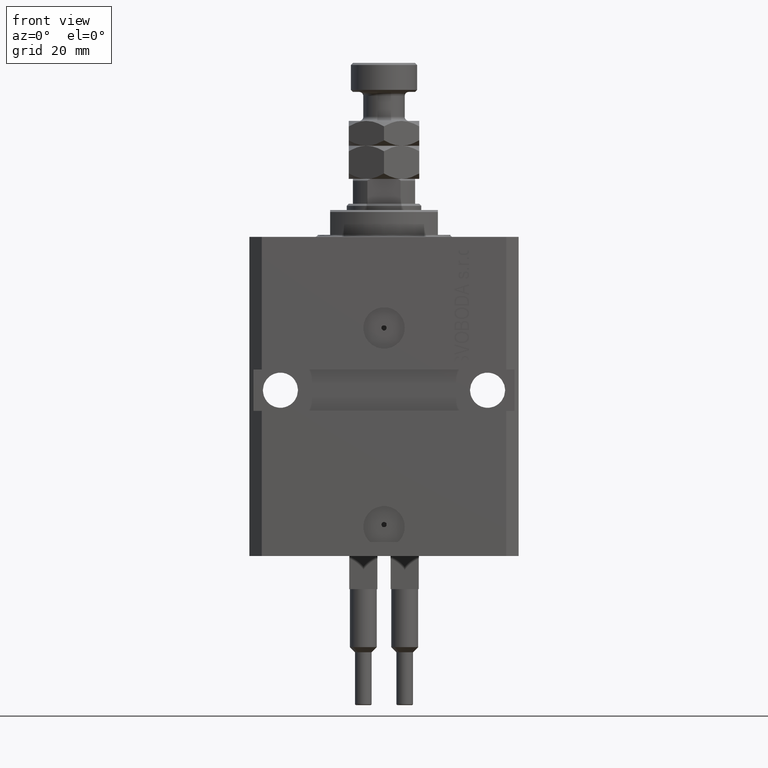
[diagram: clean part render]
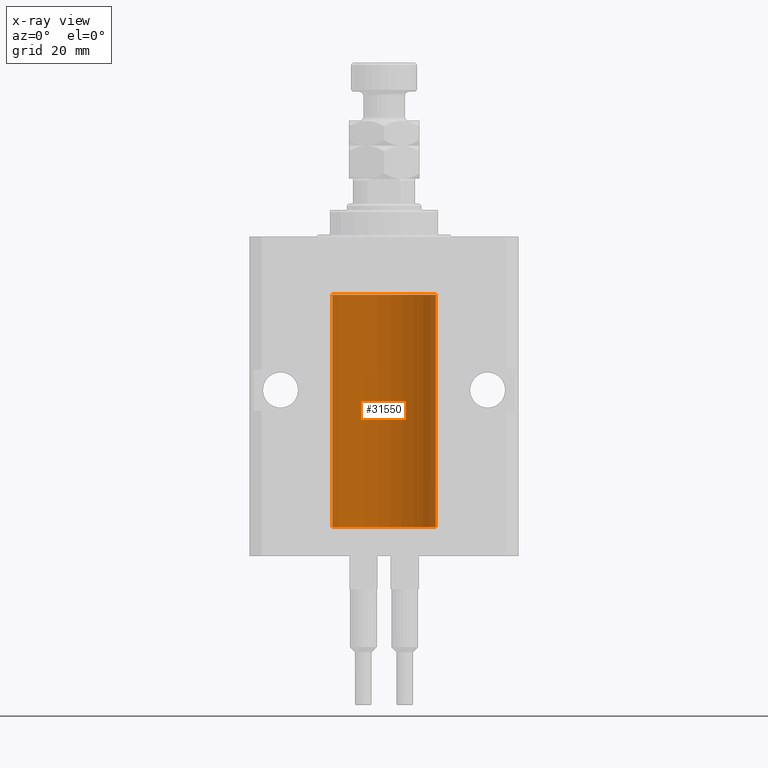
[diagram: x-ray — body ghosted, one internal face saturated and labeled with its STEP entity id]
A machine part, front view, then the same camera in x-ray: the body is ghosted and one INTERNAL B-rep face — a face not visible from any outside direction — is saturated and labeled: STEP entity #31550.
In plain terms, the highlighted cylindrical surface (partial cylindrical patch) has radius 12.5 mm, axis along (0, 0, 1).
Its self-contained STEP definition (entity closure, byte-faithful):
#110 = CARTESIAN_POINT ( 'NONE',  ( 0.000000000000000000, 0.000000000000000000, -13.99999999999999822 ) ) ;
#116 = EDGE_CURVE ( 'NONE', #43710, #31963, #1089, .T. ) ;
#315 = CARTESIAN_POINT ( 'NONE',  ( -12.49625855304193500, 0.3150454781038046770, -64.45402800297485157 ) ) ;
#351 = DIRECTION ( 'NONE',  ( 0.000000000000000000, 0.000000000000000000, 1.000000000000000000 ) ) ;
#488 = CARTESIAN_POINT ( 'NONE',  ( 12.50000000000000000, 0.000000000000000000, -70.09999999999999432 ) ) ;
#519 = CARTESIAN_POINT ( 'NONE',  ( -12.50000000000000000, -2.089494013101375120E-17, -21.37499999999999645 ) ) ;
#608 = DIRECTION ( 'NONE',  ( 1.000000000000000000, 0.000000000000000000, 0.000000000000000000 ) ) ;
#780 = CARTESIAN_POINT ( 'NONE',  ( 12.49012055744648997, 0.5002956126656082914, -64.61641710202404454 ) ) ;
#841 = DIRECTION ( 'NONE',  ( -0.000000000000000000, -0.000000000000000000, 1.000000000000000000 ) ) ;
#1089 = LINE ( 'NONE', #8701, #26406 ) ;
#1692 = EDGE_CURVE ( 'NONE', #29620, #37206, #7689, .T. ) ;
#1758 = CARTESIAN_POINT ( 'NONE',  ( -12.50000000000000000, 1.530808498934191521E-15, -70.09999999999999432 ) ) ;
#2311 = ORIENTED_EDGE ( 'NONE', *, *, #16055, .T. ) ;
#3070 = VERTEX_POINT ( 'NONE', #20712 ) ;
#4090 = CARTESIAN_POINT ( 'NONE',  ( -12.48520330846397819, 0.6088355886774127201, -22.16325431852561323 ) ) ;
#4254 = EDGE_CURVE ( 'NONE', #3070, #14392, #20948, .T. ) ;
#4430 = ORIENTED_EDGE ( 'NONE', *, *, #5983, .F. ) ;
#4573 = CARTESIAN_POINT ( 'NONE',  ( 12.48436522214846889, 0.6250000000078781426, -21.99999999999923261 ) ) ;
#5080 = CARTESIAN_POINT ( 'NONE',  ( 12.49625698805481022, 0.3151108292486944906, -65.54593695688173227 ) ) ;
#5106 = CARTESIAN_POINT ( 'NONE',  ( -12.50000000000000000, 1.530808498934191521E-15, -13.99999999999999822 ) ) ;
#5288 = VERTEX_POINT ( 'NONE', #39409 ) ;
#5983 = EDGE_CURVE ( 'NONE', #19927, #30348, #40825, .T. ) ;
#6635 = VECTOR ( 'NONE', #6652, 1000.000000000000000 ) ;
#6652 = DIRECTION ( 'NONE',  ( -0.000000000000000000, -0.000000000000000000, 1.000000000000000000 ) ) ;
#7146 = CARTESIAN_POINT ( 'NONE',  ( -12.48809959379011403, 0.5462151254764975317, -22.31461370481611795 ) ) ;
#7404 = CARTESIAN_POINT ( 'NONE',  ( -12.48436376893640443, 0.6250290278979917513, -22.08132082824473486 ) ) ;
#7676 = CARTESIAN_POINT ( 'NONE',  ( -12.48809959379011580, 0.5462151254764966435, -65.31461370481613926 ) ) ;
#7689 = LINE ( 'NONE', #8447, #41874 ) ;
#7936 = CARTESIAN_POINT ( 'NONE',  ( -12.48436376893640265, 0.6250290278979918623, -65.08132082824472775 ) ) ;
#8447 = CARTESIAN_POINT ( 'NONE',  ( -12.50000000000000000, 1.530808498934191521E-15, -70.09999999999999432 ) ) ;
#8701 = CARTESIAN_POINT ( 'NONE',  ( 12.50000000000000000, 0.000000000000000000, -70.09999999999999432 ) ) ;
#8733 = CYLINDRICAL_SURFACE ( 'NONE', #11374, 12.50000000000000000 ) ;
#9634 = CARTESIAN_POINT ( 'NONE',  ( 12.48436522214885969, 0.6250000000001505462, -65.16312747540307271 ) ) ;
#10952 = CARTESIAN_POINT ( 'NONE',  ( -12.50000000000000000, 0.08260426088729219685, -21.37500000000000000 ) ) ;
#10993 = CARTESIAN_POINT ( 'NONE',  ( -12.49999999999999645, 0.08260426088728485550, -64.37499999999998579 ) ) ;
#11374 = AXIS2_PLACEMENT_3D ( 'NONE', #48043, #29030, #16848 ) ;
#11463 = CARTESIAN_POINT ( 'NONE',  ( -12.48810268015257563, 0.5573155909661349217, -21.67347410093867666 ) ) ;
#11748 = CARTESIAN_POINT ( 'NONE',  ( -12.48810268015257741, 0.5573155909661293705, -64.67347410093867666 ) ) ;
#11772 = AXIS2_PLACEMENT_3D ( 'NONE', #32771, #42980, #12311 ) ;
#12311 = DIRECTION ( 'NONE',  ( 1.000000000000000000, 0.000000000000000000, 0.000000000000000000 ) ) ;
#12335 = ORIENTED_EDGE ( 'NONE', *, *, #28142, .T. ) ;
#13212 = CARTESIAN_POINT ( 'NONE',  ( 12.49915742890631876, 0.1636982395582408101, -22.60872397847025894 ) ) ;
#13441 = CARTESIAN_POINT ( 'NONE',  ( 12.50000000000000000, -1.836039810331332019E-15, -65.62500000000000000 ) ) ;
#13670 = EDGE_CURVE ( 'NONE', #3070, #29620, #35271, .T. ) ;
#14259 = LINE ( 'NONE', #37837, #6635 ) ;
#14368 = CARTESIAN_POINT ( 'NONE',  ( 12.50000000000000000, -1.836039810331332019E-15, -65.62500000000000000 ) ) ;
#14392 = VERTEX_POINT ( 'NONE', #14368 ) ;
#14450 = ORIENTED_EDGE ( 'NONE', *, *, #34205, .F. ) ;
#15256 = CARTESIAN_POINT ( 'NONE',  ( -12.49631005746706336, 0.3253680783018528255, -22.55856740465392463 ) ) ;
#16055 = EDGE_CURVE ( 'NONE', #14392, #5288, #39634, .T. ) ;
#16513 = CARTESIAN_POINT ( 'NONE',  ( 12.50000000000017941, 3.868073689162038701E-13, -64.37499999999640465 ) ) ;
#16673 = CARTESIAN_POINT ( 'NONE',  ( 12.50000000000017941, 3.868073565084946818E-13, -21.37499999999641176 ) ) ;
#16758 = CARTESIAN_POINT ( 'NONE',  ( 12.49999999999999822, 0.1631389616600901760, -64.37500000000022737 ) ) ;
#16848 = DIRECTION ( 'NONE',  ( 1.000000000000000000, 0.000000000000000000, 0.000000000000000000 ) ) ;
#16938 = EDGE_LOOP ( 'NONE', ( #28950, #26225, #38978, #2311, #37263, #29875, #27075, #22040, #33425, #12335, #4430, #34277, #14450, #22898 ) ) ;
#16949 = VECTOR ( 'NONE', #47928, 1000.000000000000000 ) ;
#17254 = CARTESIAN_POINT ( 'NONE',  ( 12.49999999999999822, 0.08262306818362624705, -65.62500000000000000 ) ) ;
#19107 = CARTESIAN_POINT ( 'NONE',  ( -12.48436813453758809, 0.6249418250771181516, -64.83668996798922990 ) ) ;
#19361 = CARTESIAN_POINT ( 'NONE',  ( -12.49915784441386890, 0.1636601911727943726, -64.39126818989430490 ) ) ;
#19573 = CARTESIAN_POINT ( 'NONE',  ( -12.49999999999999289, 0.1631761135151241215, -22.62499999999984013 ) ) ;
#19927 = VERTEX_POINT ( 'NONE', #25377 ) ;
#20712 = CARTESIAN_POINT ( 'NONE',  ( 12.50000000000000000, 0.000000000000000000, -70.09999999999999432 ) ) ;
#20948 = LINE ( 'NONE', #32862, #41826 ) ;
#21254 = CARTESIAN_POINT ( 'NONE',  ( 12.50000000000000000, 0.000000000000000000, -13.99999999999999822 ) ) ;
#21567 = CARTESIAN_POINT ( 'NONE',  ( 12.48809900631782099, 0.5573988467445673001, -65.32640147935475738 ) ) ;
#22040 = ORIENTED_EDGE ( 'NONE', *, *, #32724, .T. ) ;
#22898 = ORIENTED_EDGE ( 'NONE', *, *, #34950, .T. ) ;
#23169 = CARTESIAN_POINT ( 'NONE',  ( -12.49422197749724361, 0.3843754434364307082, -64.50047099568097053 ) ) ;
#23687 = CARTESIAN_POINT ( 'NONE',  ( -12.50000000000000000, -1.053276923642966949E-14, -64.37500000000000000 ) ) ;
#24141 = CARTESIAN_POINT ( 'NONE',  ( 12.48810305280568222, 0.5461368461738485003, -64.68525466142676805 ) ) ;
#24307 = CARTESIAN_POINT ( 'NONE',  ( 12.49999999999999112, 0.1631389616600886772, -21.37500000000019185 ) ) ;
#24559 = CARTESIAN_POINT ( 'NONE',  ( 12.49012055744648997, 0.5002956126655978553, -21.61641710202404454 ) ) ;
#24876 = CARTESIAN_POINT ( 'NONE',  ( 12.49421963472024721, 0.3844519291903548686, -22.49947303647045871 ) ) ;
#25124 = CARTESIAN_POINT ( 'NONE',  ( 12.48436522214846711, 0.6250000000078848039, -64.99999999999923261 ) ) ;
#25320 = CARTESIAN_POINT ( 'NONE',  ( 12.48436522214888100, 0.6249999999996767031, -21.91847339462351130 ) ) ;
#25377 = CARTESIAN_POINT ( 'NONE',  ( -12.50000000000000000, -2.089494013101375120E-17, -21.37499999999999645 ) ) ;
#25442 = EDGE_CURVE ( 'NONE', #31220, #26501, #43869, .T. ) ;
#26225 = ORIENTED_EDGE ( 'NONE', *, *, #13670, .F. ) ;
#26406 = VECTOR ( 'NONE', #27743, 1000.000000000000000 ) ;
#26425 = CARTESIAN_POINT ( 'NONE',  ( -12.49915784441386890, 0.1636601911727947889, -21.39126818989430490 ) ) ;
#26501 = VERTEX_POINT ( 'NONE', #21254 ) ;
#27075 = ORIENTED_EDGE ( 'NONE', *, *, #49376, .T. ) ;
#27169 = CARTESIAN_POINT ( 'NONE',  ( -12.48436813453758454, 0.6249418250771192618, -21.83668996798922635 ) ) ;
#27214 = CARTESIAN_POINT ( 'NONE',  ( -12.49011732893843885, 0.5003763274120245352, -65.38348111289289477 ) ) ;
#27743 = DIRECTION ( 'NONE',  ( -0.000000000000000000, -0.000000000000000000, 1.000000000000000000 ) ) ;
#28142 = EDGE_CURVE ( 'NONE', #26501, #30348, #29205, .T. ) ;
#28444 = CARTESIAN_POINT ( 'NONE',  ( 12.48436522214846711, 0.6250000000078848039, -64.99999999999923261 ) ) ;
#28950 = ORIENTED_EDGE ( 'NONE', *, *, #1692, .F. ) ;
#29030 = DIRECTION ( 'NONE',  ( -0.000000000000000000, -0.000000000000000000, 1.000000000000000000 ) ) ;
#29179 = CARTESIAN_POINT ( 'NONE',  ( 12.49915742890631876, 0.1636982395582385896, -65.60872397847025184 ) ) ;
#29205 = CIRCLE ( 'NONE', #42934, 12.50000000000000000 ) ;
#29620 = VERTEX_POINT ( 'NONE', #39044 ) ;
#29682 = CARTESIAN_POINT ( 'NONE',  ( 12.49625698805481200, 0.3151108292486943241, -22.54593695688172161 ) ) ;
#29875 = ORIENTED_EDGE ( 'NONE', *, *, #116, .T. ) ;
#30002 = CARTESIAN_POINT ( 'NONE',  ( 12.50000000000017941, 3.868073689162038701E-13, -64.37499999999640465 ) ) ;
#30348 = VERTEX_POINT ( 'NONE', #5106 ) ;
#30628 = VERTEX_POINT ( 'NONE', #33738 ) ;
#31029 = CARTESIAN_POINT ( 'NONE',  ( -12.49631005746706514, 0.3253680783018499389, -65.55856740465391397 ) ) ;
#31220 = VERTEX_POINT ( 'NONE', #45036 ) ;
#31231 = CARTESIAN_POINT ( 'NONE',  ( -12.50000000000017941, 3.883381646606358354E-13, -22.62500000000358824 ) ) ;
#31273 = CARTESIAN_POINT ( 'NONE',  ( -12.50000000000017941, 3.883381774819353300E-13, -65.62500000000359535 ) ) ;
#31550 = ADVANCED_FACE ( 'NONE', ( #43981 ), #8733, .F. ) ;
#31963 = VERTEX_POINT ( 'NONE', #32261 ) ;
#32261 = CARTESIAN_POINT ( 'NONE',  ( 12.50000000000000000, -6.043189914290669986E-17, -22.62500000000000000 ) ) ;
#32724 = EDGE_CURVE ( 'NONE', #36186, #31220, #36575, .T. ) ;
#32771 = CARTESIAN_POINT ( 'NONE',  ( 0.000000000000000000, 0.000000000000000000, -70.09999999999999432 ) ) ;
#32862 = CARTESIAN_POINT ( 'NONE',  ( 12.50000000000000000, 0.000000000000000000, -70.09999999999999432 ) ) ;
#32901 = B_SPLINE_CURVE_WITH_KNOTS ( 'NONE', 3,
 ( #28444, #39849, #36295, #24141, #780, #43898, #16758, #16513 ),
 .UNSPECIFIED., .F., .F.,
 ( 4, 2, 2, 4 ),
 ( 0.0009773924225142606621, 0.001221629287363811033, 0.001465866152213361404, 0.001954339881912461711 ),
 .UNSPECIFIED. ) ;
#33425 = ORIENTED_EDGE ( 'NONE', *, *, #25442, .T. ) ;
#33491 = CARTESIAN_POINT ( 'NONE',  ( 12.48436522214885080, 0.6250000000001435518, -22.16312747540306560 ) ) ;
#33738 = CARTESIAN_POINT ( 'NONE',  ( -12.50000000000017941, 3.883381646606358354E-13, -22.62500000000358824 ) ) ;
#34205 = EDGE_CURVE ( 'NONE', #46094, #30628, #14259, .T. ) ;
#34277 = ORIENTED_EDGE ( 'NONE', *, *, #41920, .T. ) ;
#34950 = EDGE_CURVE ( 'NONE', #46094, #37206, #38878, .T. ) ;
#35082 = CARTESIAN_POINT ( 'NONE',  ( -12.48520330846398174, 0.6088355886774118320, -65.16325431852561678 ) ) ;
#35271 = CIRCLE ( 'NONE', #11772, 12.50000000000000000 ) ;
#36031 = CARTESIAN_POINT ( 'NONE',  ( 12.50000000000000000, -6.043189914290669986E-17, -22.62500000000000000 ) ) ;
#36186 = VERTEX_POINT ( 'NONE', #4573 ) ;
#36295 = CARTESIAN_POINT ( 'NONE',  ( 12.48520578595314845, 0.6087855079133740466, -64.83656717509344958 ) ) ;
#36575 = B_SPLINE_CURVE_WITH_KNOTS ( 'NONE', 3,
 ( #44578, #25320, #40783, #48123, #24559, #44062, #24307, #16673 ),
 .UNSPECIFIED., .F., .F.,
 ( 4, 2, 2, 4 ),
 ( 0.0009773924225142526390, 0.001221629287363798890, 0.001465866152213344924, 0.001954339881912444798 ),
 .UNSPECIFIED. ) ;
#37206 = VERTEX_POINT ( 'NONE', #43845 ) ;
#37263 = ORIENTED_EDGE ( 'NONE', *, *, #41987, .T. ) ;
#37301 = CARTESIAN_POINT ( 'NONE',  ( 12.48809900631782099, 0.5573988467445616379, -22.32640147935473962 ) ) ;
#37830 = B_SPLINE_CURVE_WITH_KNOTS ( 'NONE', 3,
 ( #519, #10952, #26425, #42393, #41904, #11463, #27169, #7404, #4090, #7146, #45945, #15256, #19573, #31231 ),
 .UNSPECIFIED., .F., .F.,
 ( 4, 2, 2, 2, 2, 2, 4 ),
 ( 2.030551168097110502E-20, 0.0002442924852390969078, 0.0004885849704781938157, 0.0009771699409563880650, 0.001221462426195485135, 0.001465754911434582423, 0.001954339881912776130 ),
 .UNSPECIFIED. ) ;
#37837 = CARTESIAN_POINT ( 'NONE',  ( -12.50000000000000000, 1.530808498934191521E-15, -70.09999999999999432 ) ) ;
#37843 = VECTOR ( 'NONE', #40310, 1000.000000000000000 ) ;
#38626 = CARTESIAN_POINT ( 'NONE',  ( -12.49999999999999822, 0.1631761135151225950, -65.62499999999985789 ) ) ;
#38878 = B_SPLINE_CURVE_WITH_KNOTS ( 'NONE', 3,
 ( #23687, #10993, #19361, #315, #23169, #11748, #19107, #7936, #35082, #7676, #27214, #31029, #38626, #31273 ),
 .UNSPECIFIED., .F., .F.,
 ( 4, 2, 2, 2, 2, 2, 4 ),
 ( 3.492495172846855184E-18, 0.0002442924852390798859, 0.0004885849704781563023, 0.0009771699409563386254, 0.001221462426195450658, 0.001465754911434562473, 0.001954339881912786538 ),
 .UNSPECIFIED. ) ;
#38978 = ORIENTED_EDGE ( 'NONE', *, *, #4254, .T. ) ;
#39044 = CARTESIAN_POINT ( 'NONE',  ( -12.50000000000000000, 1.530808498934191521E-15, -70.09999999999999432 ) ) ;
#39409 = CARTESIAN_POINT ( 'NONE',  ( 12.48436522214846711, 0.6250000000078848039, -64.99999999999923261 ) ) ;
#39634 = B_SPLINE_CURVE_WITH_KNOTS ( 'NONE', 3,
 ( #13441, #17254, #29179, #5080, #40844, #21567, #9634, #25124 ),
 .UNSPECIFIED., .F., .F.,
 ( 4, 2, 2, 4 ),
 ( 1.784246692340212412E-18, 0.0002443481056285665750, 0.0004886962112571313068, 0.0009773924225142606621 ),
 .UNSPECIFIED. ) ;
#39849 = CARTESIAN_POINT ( 'NONE',  ( 12.48436522214888100, 0.6249999999996834754, -64.91847339462351840 ) ) ;
#40310 = DIRECTION ( 'NONE',  ( -0.000000000000000000, -0.000000000000000000, 1.000000000000000000 ) ) ;
#40783 = CARTESIAN_POINT ( 'NONE',  ( 12.48520578595314845, 0.6087855079133686065, -21.83656717509346024 ) ) ;
#40825 = LINE ( 'NONE', #1758, #37843 ) ;
#40844 = CARTESIAN_POINT ( 'NONE',  ( 12.49421963472024721, 0.3844519291903572555, -65.49947303647046226 ) ) ;
#40978 = DIRECTION ( 'NONE',  ( -0.000000000000000000, -0.000000000000000000, 1.000000000000000000 ) ) ;
#41826 = VECTOR ( 'NONE', #40978, 1000.000000000000000 ) ;
#41874 = VECTOR ( 'NONE', #841, 1000.000000000000000 ) ;
#41904 = CARTESIAN_POINT ( 'NONE',  ( -12.49422197749724006, 0.3843754434364375916, -21.50047099568095277 ) ) ;
#41920 = EDGE_CURVE ( 'NONE', #19927, #30628, #37830, .T. ) ;
#41987 = EDGE_CURVE ( 'NONE', #5288, #43710, #32901, .T. ) ;
#42393 = CARTESIAN_POINT ( 'NONE',  ( -12.49625855304193678, 0.3150454781038042329, -21.45402800297484802 ) ) ;
#42934 = AXIS2_PLACEMENT_3D ( 'NONE', #110, #351, #608 ) ;
#42980 = DIRECTION ( 'NONE',  ( 0.000000000000000000, 0.000000000000000000, 1.000000000000000000 ) ) ;
#43710 = VERTEX_POINT ( 'NONE', #30002 ) ;
#43845 = CARTESIAN_POINT ( 'NONE',  ( -12.50000000000017941, 3.883381774819353300E-13, -65.62500000000359535 ) ) ;
#43869 = LINE ( 'NONE', #488, #16949 ) ;
#43898 = CARTESIAN_POINT ( 'NONE',  ( 12.49631206032076136, 0.3252904079142934779, -64.44139700214927302 ) ) ;
#43981 = FACE_OUTER_BOUND ( 'NONE', #16938, .T. ) ;
#44062 = CARTESIAN_POINT ( 'NONE',  ( 12.49631206032075958, 0.3252904079142805438, -21.44139700214925526 ) ) ;
#44578 = CARTESIAN_POINT ( 'NONE',  ( 12.48436522214846889, 0.6250000000078781426, -21.99999999999923261 ) ) ;
#45036 = CARTESIAN_POINT ( 'NONE',  ( 12.50000000000017941, 3.868073565084946818E-13, -21.37499999999641176 ) ) ;
#45178 = B_SPLINE_CURVE_WITH_KNOTS ( 'NONE', 3,
 ( #36031, #46942, #13212, #29682, #24876, #37301, #33491, #48958 ),
 .UNSPECIFIED., .F., .F.,
 ( 4, 2, 2, 4 ),
 ( 5.872716678082737689E-20, 0.0002443481056285632140, 0.0004886962112571263195, 0.0009773924225142526390 ),
 .UNSPECIFIED. ) ;
#45818 = CARTESIAN_POINT ( 'NONE',  ( -12.50000000000000000, -1.053276923642966949E-14, -64.37500000000000000 ) ) ;
#45945 = CARTESIAN_POINT ( 'NONE',  ( -12.49011732893843529, 0.5003763274120274218, -22.38348111289287701 ) ) ;
#46094 = VERTEX_POINT ( 'NONE', #45818 ) ;
#46942 = CARTESIAN_POINT ( 'NONE',  ( 12.50000000000000178, 0.08262306818362646910, -22.62499999999997158 ) ) ;
#47928 = DIRECTION ( 'NONE',  ( -0.000000000000000000, -0.000000000000000000, 1.000000000000000000 ) ) ;
#48043 = CARTESIAN_POINT ( 'NONE',  ( 0.000000000000000000, 0.000000000000000000, -70.09999999999999432 ) ) ;
#48123 = CARTESIAN_POINT ( 'NONE',  ( 12.48810305280568222, 0.5461368461738450586, -21.68525466142676805 ) ) ;
#48958 = CARTESIAN_POINT ( 'NONE',  ( 12.48436522214846889, 0.6250000000078781426, -21.99999999999923261 ) ) ;
#49376 = EDGE_CURVE ( 'NONE', #31963, #36186, #45178, .T. ) ;